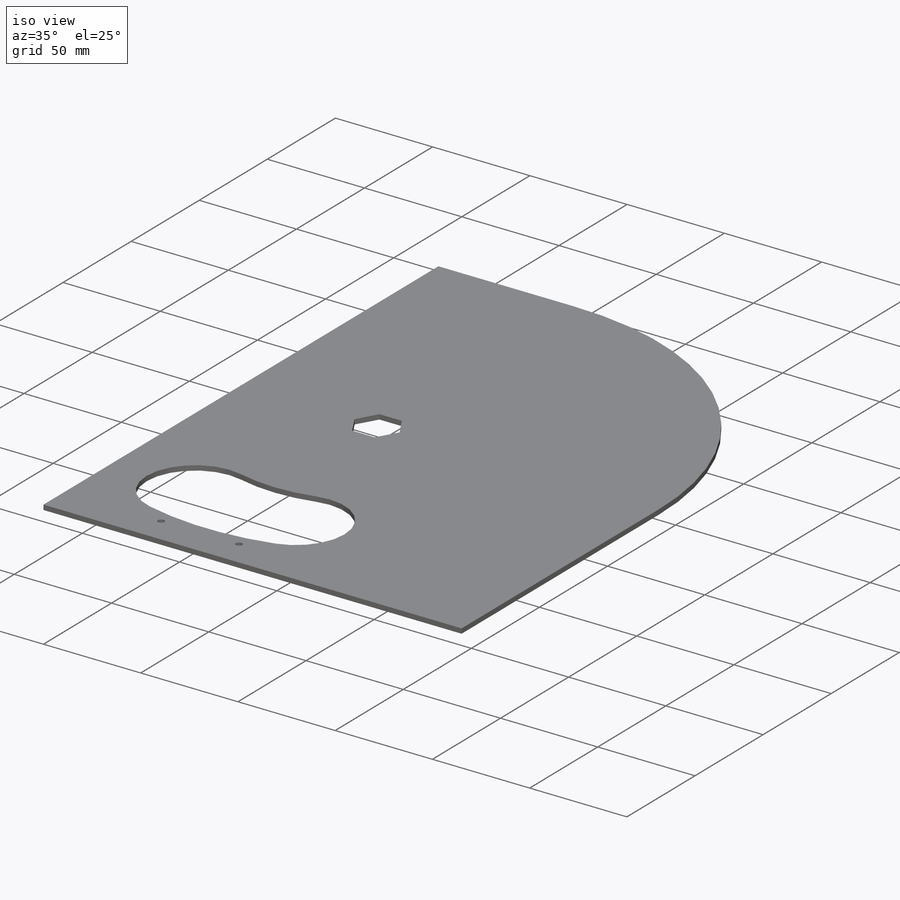
[diagram: iso view]
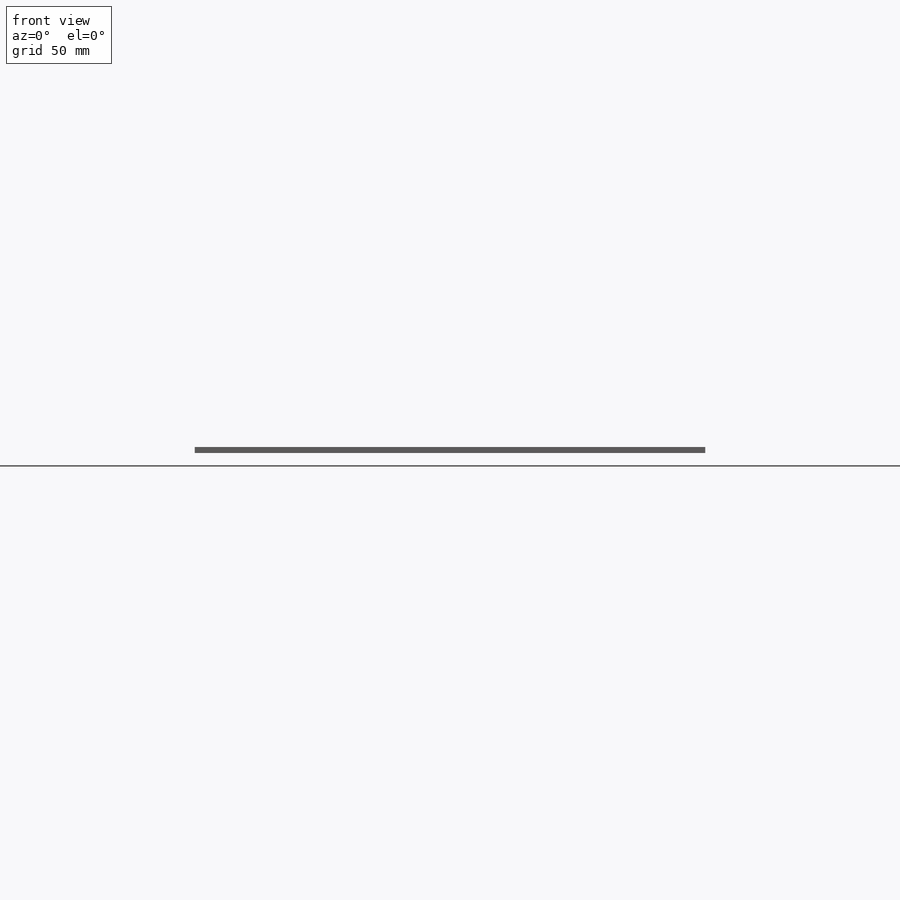
[diagram: front view]
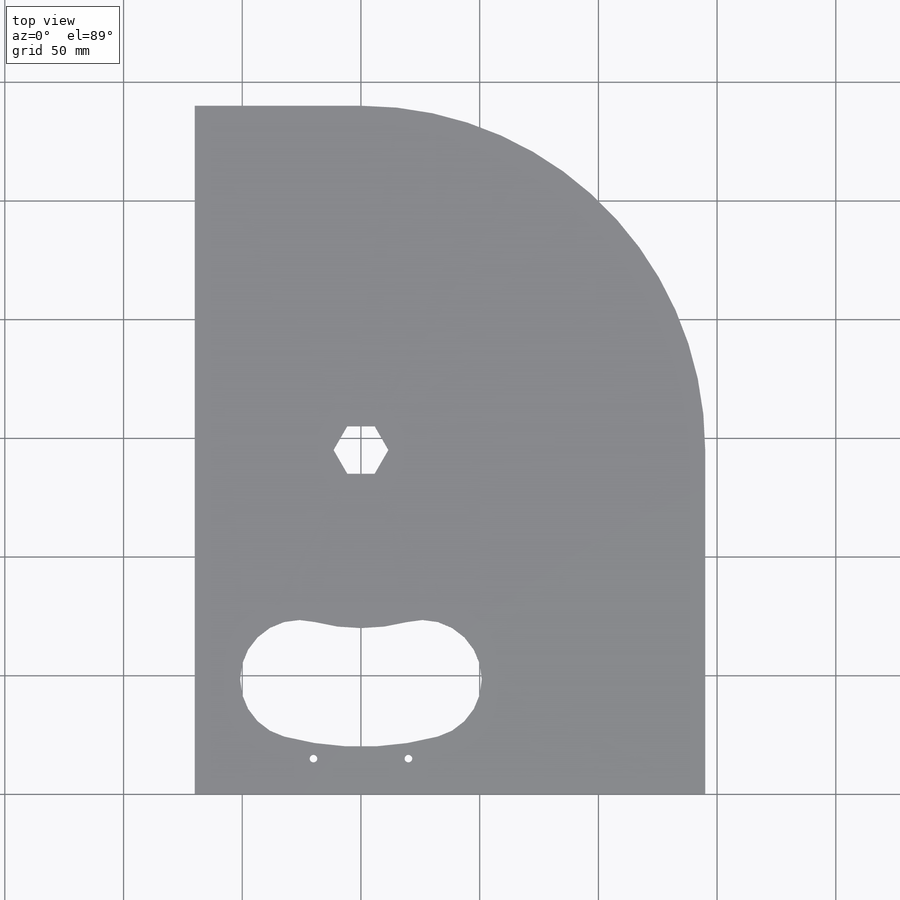
[diagram: top view]
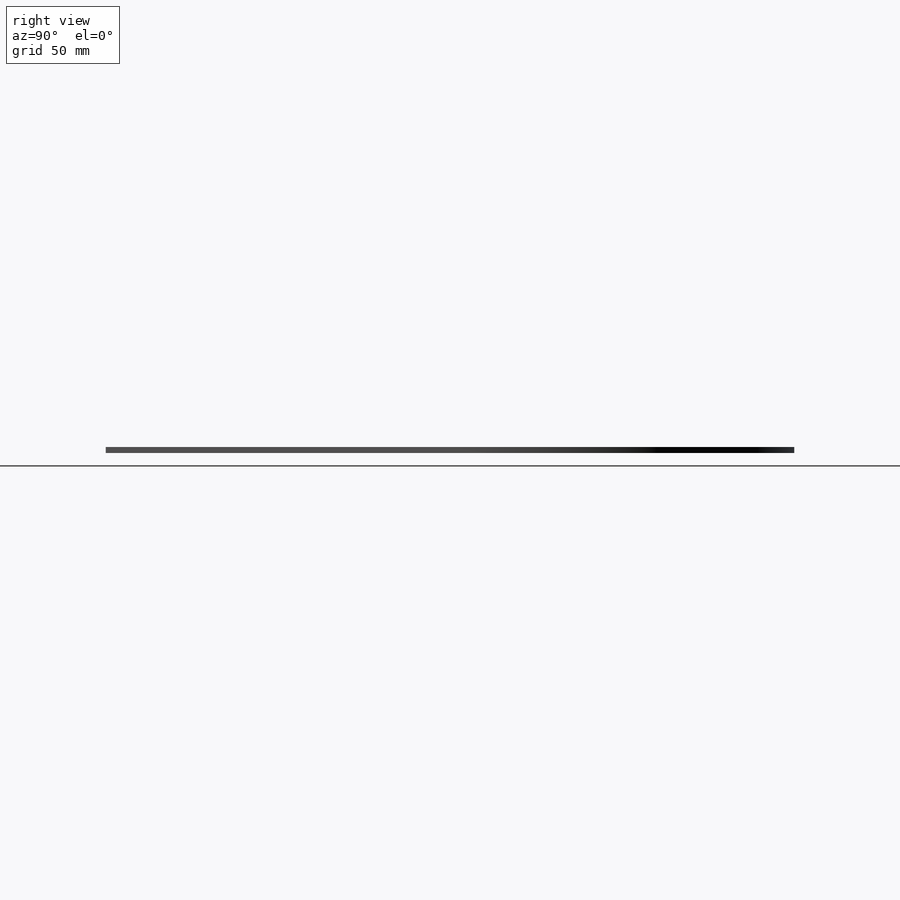
[diagram: right view]
SOLIDWORKS PART (.sldprt)
format: sldprt  version: not decoded by parser v0  size: 577,024 bytes
history: native  units: mm
features: sketch x4, cut_extrude x3, material x1, extrude x1 (+11 scaffold rows collapsed)
feature tree (20):
  scaffold x11  (default folders/planes/origin — collapsed)
  material  "Acrylic (Medium-high impact)"
  sketch  "Sketch1"  dims[c1.D2=40.0mm c1.D5=50.0mm c1.D1=290.0mm c1.D3=10.0mm c1.D4=30.0mm c2.D3=105.0mm]
  sketch  "Sketch2"  dims[D1=27.5mm D2=32.5mm]
  sketch  "Sketch3"  dims[D2=52.5mm D1=105.0mm]
  extrude  "Boss-Extrude2"  Depth=2.5mm
  cut_extrude  "Cut-Extrude2"  [1 undecoded]
  cut_extrude  "Cut-Extrude3"  [1 undecoded]
  sketch  "Sketch4"  dims[D2=3.2mm D1=8.0mm D3=25.0mm]
  cut_extrude  "Cut-Extrude4"  Depth=10mm
decode coverage: 6 of 8 modeling features carry decoded parameters
note: 2 parameter values undecoded
note: suppression state not decoded; provenance and decode notes live in map.json
